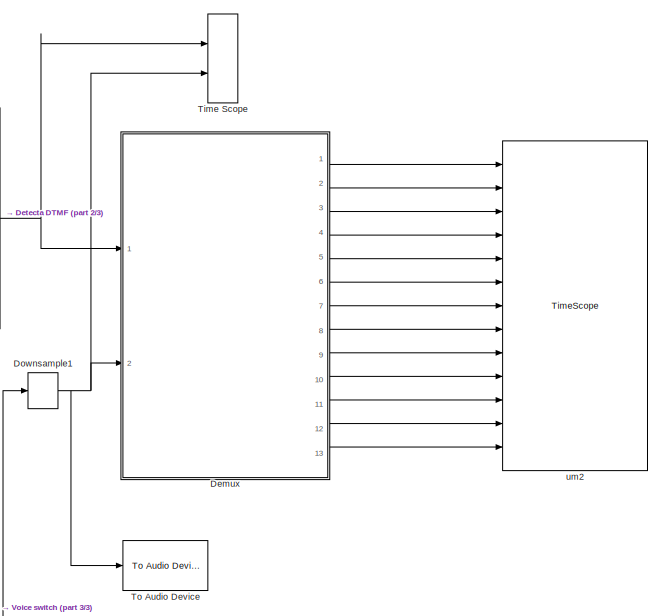
[diagram: root canvas - part 1/3, middle right region]
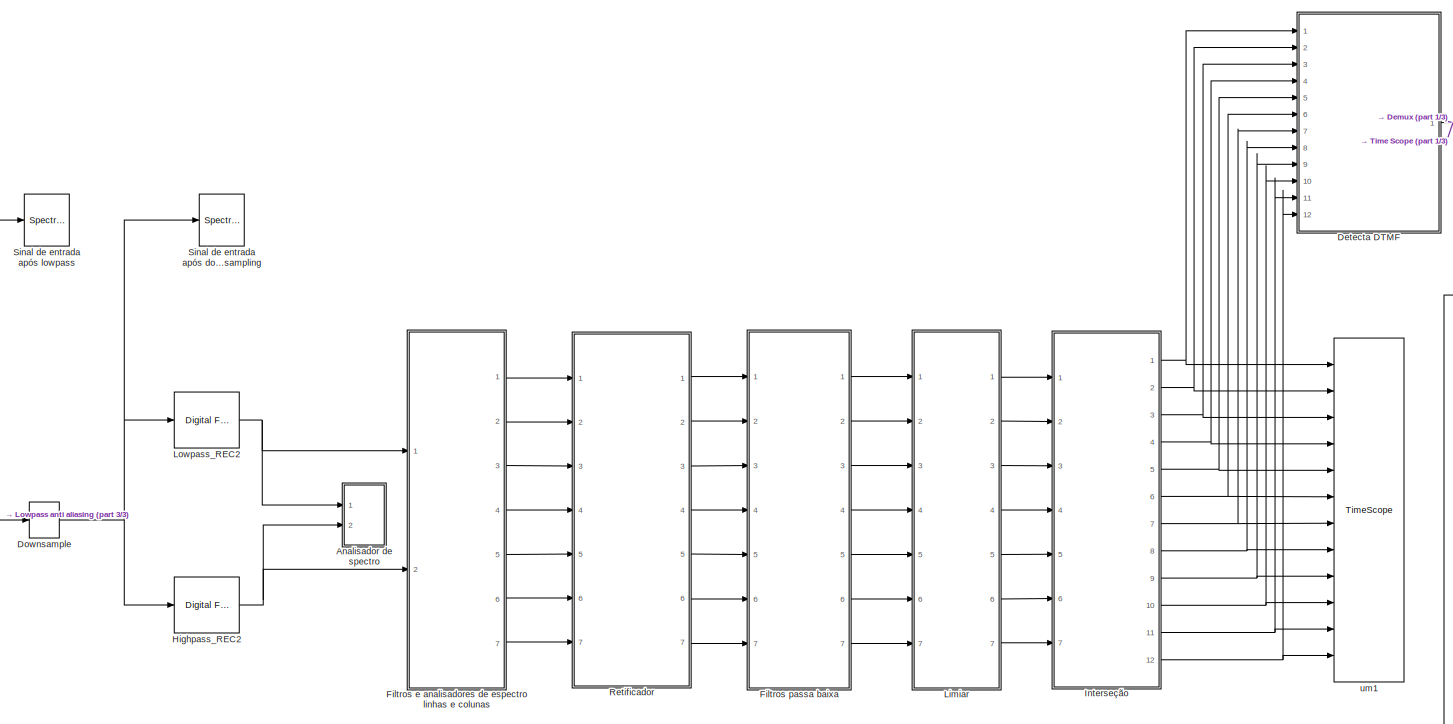
[diagram: root canvas - part 2/3, center side, full height]
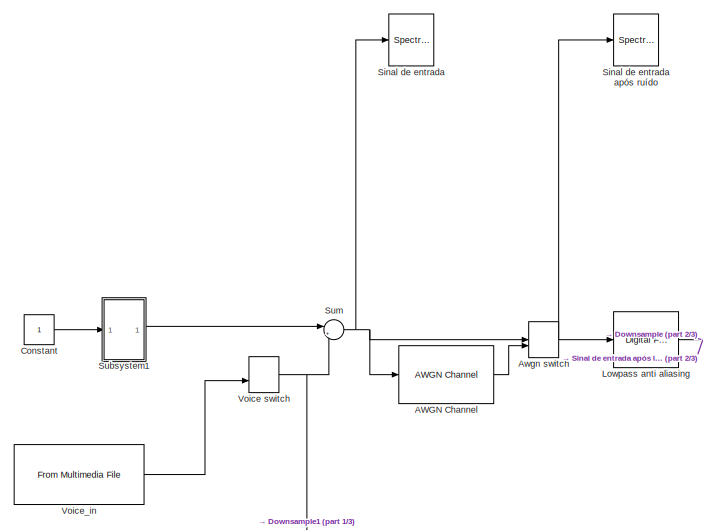
[diagram: root canvas - part 3/3, middle left region]
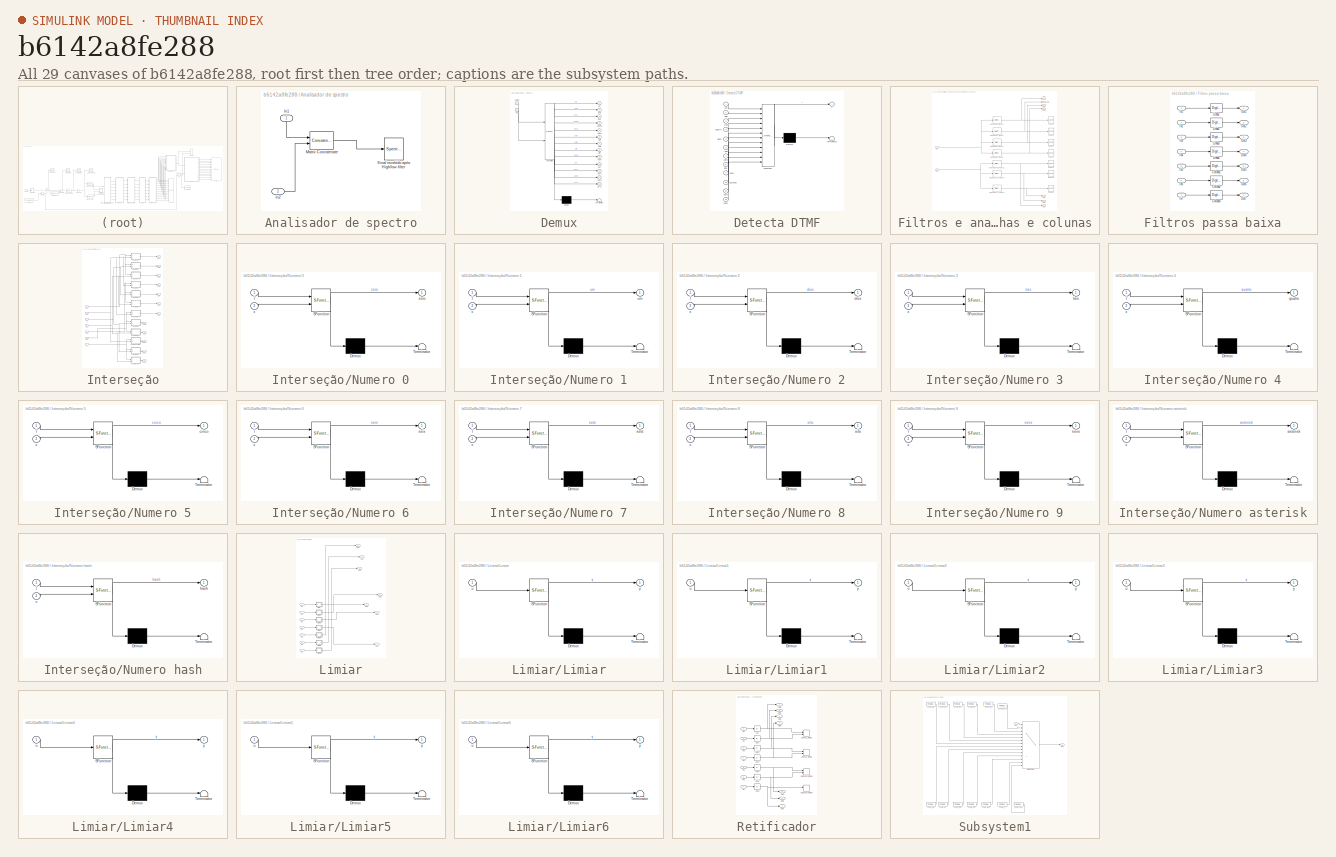
[diagram: thumbnail index - all 29 canvases of the model, root first then tree order]
MODEL slx_b6142a8fe288
KIND model
CONFIG AbsTol = auto
CONFIG FixedStep = auto
CONFIG MaxStep = auto
CONFIG MinStep = auto
CONFIG RelTol = 1e-3
CONFIG SampleTimeConstraint = Unconstrained
CONFIG Solver = FixedStepDiscrete
CONFIG SolverMode = SingleTasking
CONFIG SolverName = FixedStepDiscrete
CONFIG StartTime = 0.0
CONFIG StopTime = inf
BLOCK [Reference] AWGN Channel  REF=commchan3/AWGN
Channel
  EbNodB = 30
  EsNodB = 10
  InputProcessing = Columns as channels (frame based)
  Ports = [1, 1]
  Ps = 1
  SNRdB = 5
  SourceBlock = commchan3/AWGN\nChannel
  SourceType = AWGN Channel
  Tsym = 1
  UserDataPersistent = on
  bitsPerSym = 1
  noiseMode = Signal to noise ratio  (SNR)
  seed = 67
  variance = 1
BLOCK [SubSystem] Analisador de spectro
  Ports = [2]
  RequestExecContextInheritance = off
BLOCK [Inport] Analisador de spectro/In1
  IconDisplay = Port number
BLOCK [Inport] Analisador de spectro/In2
  IconDisplay = Port number
  Port = 2
BLOCK [Concatenate] Analisador de spectro/Matrix Concatenate
  ConcatenateDimension = 2
  Mode = Multidimensional array
  Ports = [2, 1]
BLOCK [SpectrumAnalyzer] Analisador de spectro/Sinal recebido após High//low filter
  Commented = on
  Ports = [1]
  ScopeSpecificationString = spbscopes.SpectrumAnalyzerBlockCfg('CurrentConfiguration', extmgr.ConfigurationSet(extmgr.Configuration('Core','General UI',true),extmgr.Configuration('Core','Source UI',true),extmgr.Configuration('Sources','WiredSimulink',true),extmgr.Configuration('Visuals','Spectrum',true,'AxesProperties',struct('Color',[0 0 0],'XColor',[0.686274509803922 0.686274509803922 0.686274509803922],'YColor',[0.6862745...<+6610ch>
BLOCK [ManualSwitch] Awgn switch
  CurrentSetting = 0
BLOCK [Constant] Constant
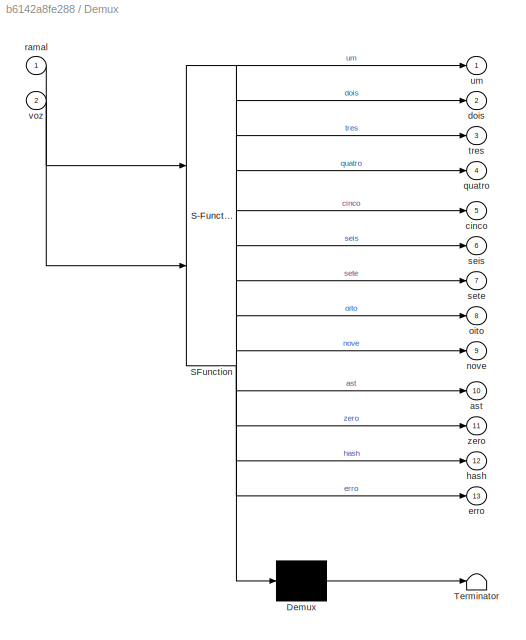
BLOCK [SubSystem] Demux
  ErrorFcn = Stateflow.Translate.translate
  PermitHierarchicalResolution = ExplicitOnly
  Ports = [2, 13]
  RequestExecContextInheritance = off
  SFBlockType = MATLAB Function
  TreatAsAtomicUnit = on
BLOCK [Demux] Demux/ Demux 
  Outputs = 1
  Ports = [1, 1]
BLOCK [S-Function] Demux/ SFunction 
  EnableBusSupport = on
  FunctionName = sf_sfun
  PortCounts = [2 14]
  Ports = [2, 14]
  Tag = Stateflow S-Function projeto_fixedstepdiscrete 21
BLOCK [Terminator] Demux/ Terminator 
BLOCK [Outport] Demux/ast
  IconDisplay = Port number
  Port = 10
BLOCK [Outport] Demux/cinco
  IconDisplay = Port number
  Port = 5
BLOCK [Outport] Demux/dois
  IconDisplay = Port number
  Port = 2
BLOCK [Outport] Demux/erro
  IconDisplay = Port number
  Port = 13
BLOCK [Outport] Demux/hash
  IconDisplay = Port number
  Port = 12
BLOCK [Outport] Demux/nove
  IconDisplay = Port number
  Port = 9
BLOCK [Outport] Demux/oito
  IconDisplay = Port number
  Port = 8
BLOCK [Outport] Demux/quatro
  IconDisplay = Port number
  Port = 4
BLOCK [Inport] Demux/ramal
  IconDisplay = Port number
BLOCK [Outport] Demux/seis
  IconDisplay = Port number
  Port = 6
BLOCK [Outport] Demux/sete
  IconDisplay = Port number
  Port = 7
BLOCK [Outport] Demux/tres
  IconDisplay = Port number
  Port = 3
BLOCK [Outport] Demux/um
  IconDisplay = Port number
BLOCK [Inport] Demux/voz
  IconDisplay = Port number
  Port = 2
BLOCK [Outport] Demux/zero
  IconDisplay = Port number
  Port = 11
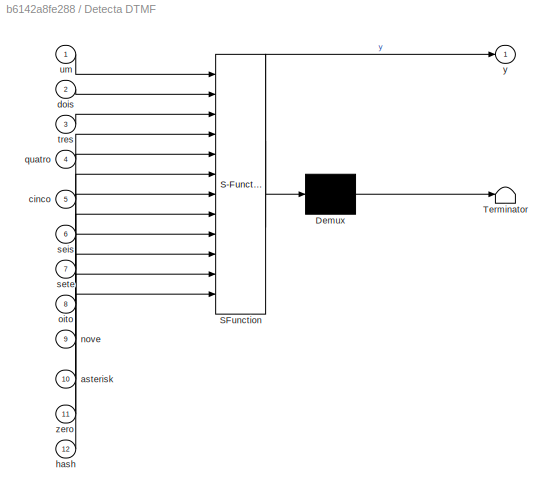
BLOCK [SubSystem] Detecta DTMF
  ErrorFcn = Stateflow.Translate.translate
  PermitHierarchicalResolution = ExplicitOnly
  Ports = [12, 1]
  RequestExecContextInheritance = off
  SFBlockType = MATLAB Function
  TreatAsAtomicUnit = on
BLOCK [Demux] Detecta DTMF/ Demux 
  Outputs = 1
  Ports = [1, 1]
BLOCK [S-Function] Detecta DTMF/ SFunction 
  EnableBusSupport = on
  FunctionName = sf_sfun
  PortCounts = [12 2]
  Ports = [12, 2]
  Tag = Stateflow S-Function projeto_fixedstepdiscrete 20
BLOCK [Terminator] Detecta DTMF/ Terminator 
BLOCK [Inport] Detecta DTMF/asterisk
  IconDisplay = Port number
  Port = 10
BLOCK [Inport] Detecta DTMF/cinco
  IconDisplay = Port number
  Port = 5
BLOCK [Inport] Detecta DTMF/dois
  IconDisplay = Port number
  Port = 2
BLOCK [Inport] Detecta DTMF/hash
  IconDisplay = Port number
  Port = 12
BLOCK [Inport] Detecta DTMF/nove
  IconDisplay = Port number
  Port = 9
BLOCK [Inport] Detecta DTMF/oito
  IconDisplay = Port number
  Port = 8
BLOCK [Inport] Detecta DTMF/quatro
  IconDisplay = Port number
  Port = 4
BLOCK [Inport] Detecta DTMF/seis
  IconDisplay = Port number
  Port = 6
BLOCK [Inport] Detecta DTMF/sete
  IconDisplay = Port number
  Port = 7
BLOCK [Inport] Detecta DTMF/tres
  IconDisplay = Port number
  Port = 3
BLOCK [Inport] Detecta DTMF/um
  IconDisplay = Port number
BLOCK [Outport] Detecta DTMF/y
  IconDisplay = Port number
BLOCK [Inport] Detecta DTMF/zero
  IconDisplay = Port number
  Port = 11
BLOCK [DownSample] Downsample
  InputProcessing = Elements as channels (sample based)
  N = 11
  RateOptions = Allow multirate processing
BLOCK [DownSample] Downsample1
  InputProcessing = Elements as channels (sample based)
  N = 11
  RateOptions = Allow multirate processing
BLOCK [SubSystem] Filtros e analisadores de espectro linhas e colunas
  Ports = [2, 7]
  RequestExecContextInheritance = off
BLOCK [Reference] Filtros e analisadores de espectro linhas e colunas/Bandpass_coluna1  REF=dsparch4/Digital
Filter Design
  Ports = [1, 1]
  SourceBlock = dsparch4/Digital\nFilter Design
  SourceType = Digital Filter Design
  UserDataPersistent = on
  mwdsp_browser_bugfix_var = off
BLOCK [Reference] Filtros e analisadores de espectro linhas e colunas/Bandpass_coluna2  REF=dsparch4/Digital
Filter Design
  Ports = [1, 1]
  SourceBlock = dsparch4/Digital\nFilter Design
  SourceType = Digital Filter Design
  UserDataPersistent = on
  mwdsp_browser_bugfix_var = off
BLOCK [Reference] Filtros e analisadores de espectro linhas e colunas/Bandpass_coluna3  REF=dsparch4/Digital
Filter Design
  Ports = [1, 1]
  SourceBlock = dsparch4/Digital\nFilter Design
  SourceType = Digital Filter Design
  UserDataPersistent = on
  mwdsp_browser_bugfix_var = off
BLOCK [Reference] Filtros e analisadores de espectro linhas e colunas/Bandpass_linha1  REF=dsparch4/Digital
Filter Design
  Ports = [1, 1]
  SourceBlock = dsparch4/Digital\nFilter Design
  SourceType = Digital Filter Design
  UserDataPersistent = on
  mwdsp_browser_bugfix_var = off
BLOCK [Reference] Filtros e analisadores de espectro linhas e colunas/Bandpass_linha2  REF=dsparch4/Digital
Filter Design
  Ports = [1, 1]
  SourceBlock = dsparch4/Digital\nFilter Design
  SourceType = Digital Filter Design
  UserDataPersistent = on
  mwdsp_browser_bugfix_var = off
BLOCK [Reference] Filtros e analisadores de espectro linhas e colunas/Bandpass_linha3  REF=dsparch4/Digital
Filter Design
  Ports = [1, 1]
  SourceBlock = dsparch4/Digital\nFilter Design
  SourceType = Digital Filter Design
  UserDataPersistent = on
  mwdsp_browser_bugfix_var = off
BLOCK [Reference] Filtros e analisadores de espectro linhas e colunas/Bandpass_linha4  REF=dsparch4/Digital
Filter Design
  Ports = [1, 1]
  SourceBlock = dsparch4/Digital\nFilter Design
  SourceType = Digital Filter Design
  UserDataPersistent = on
  mwdsp_browser_bugfix_var = off
BLOCK [SpectrumAnalyzer] Filtros e analisadores de espectro linhas e colunas/Coluna1 
  Commented = on
  Ports = [1]
  ScopeSpecificationString = spbscopes.SpectrumAnalyzerBlockCfg('CurrentConfiguration', extmgr.ConfigurationSet(extmgr.Configuration('Core','General UI',true),extmgr.Configuration('Core','Source UI',true),extmgr.Configuration('Sources','WiredSimulink',true),extmgr.Configuration('Visuals','Spectrum',true,'AxesProperties',struct('Color',[0 0 0],'XColor',[0.686274509803922 0.686274509803922 0.686274509803922],'YColor',[0.6862745...<+6284ch>
BLOCK [SpectrumAnalyzer] Filtros e analisadores de espectro linhas e colunas/Coluna2 
  Commented = on
  Ports = [1]
  ScopeSpecificationString = spbscopes.SpectrumAnalyzerBlockCfg('CurrentConfiguration', extmgr.ConfigurationSet(extmgr.Configuration('Core','General UI',true),extmgr.Configuration('Core','Source UI',true),extmgr.Configuration('Sources','WiredSimulink',true),extmgr.Configuration('Visuals','Spectrum',true,'AxesProperties',struct('Color',[0 0 0],'XColor',[0.686274509803922 0.686274509803922 0.686274509803922],'YColor',[0.6862745...<+6317ch>
BLOCK [SpectrumAnalyzer] Filtros e analisadores de espectro linhas e colunas/Coluna3
  Commented = on
  Ports = [1]
  ScopeSpecificationString = spbscopes.SpectrumAnalyzerBlockCfg('CurrentConfiguration', extmgr.ConfigurationSet(extmgr.Configuration('Core','General UI',true),extmgr.Configuration('Core','Source UI',true),extmgr.Configuration('Sources','WiredSimulink',true),extmgr.Configuration('Visuals','Spectrum',true,'AxesProperties',struct('Color',[0 0 0],'XColor',[0.686274509803922 0.686274509803922 0.686274509803922],'YColor',[0.6862745...<+6194ch>
BLOCK [Inport] Filtros e analisadores de espectro linhas e colunas/In1
  IconDisplay = Port number
BLOCK [Inport] Filtros e analisadores de espectro linhas e colunas/In2
  IconDisplay = Port number
  Port = 2
BLOCK [SpectrumAnalyzer] Filtros e analisadores de espectro linhas e colunas/Linha 1
  Commented = on
  Ports = [1]
  ScopeSpecificationString = spbscopes.SpectrumAnalyzerBlockCfg('CurrentConfiguration', extmgr.ConfigurationSet(extmgr.Configuration('Core','General UI',true),extmgr.Configuration('Core','Source UI',true),extmgr.Configuration('Sources','WiredSimulink',true),extmgr.Configuration('Visuals','Spectrum',true,'AxesProperties',struct('Color',[0 0 0],'XColor',[0.686274509803922 0.686274509803922 0.686274509803922],'YColor',[0.6862745...<+6522ch>
BLOCK [SpectrumAnalyzer] Filtros e analisadores de espectro linhas e colunas/Linha 2
  Commented = on
  Ports = [1]
  ScopeSpecificationString = spbscopes.SpectrumAnalyzerBlockCfg('CurrentConfiguration', extmgr.ConfigurationSet(extmgr.Configuration('Core','General UI',true),extmgr.Configuration('Core','Source UI',true),extmgr.Configuration('Sources','WiredSimulink',true),extmgr.Configuration('Visuals','Spectrum',true,'AxesProperties',struct('Color',[0 0 0],'XColor',[0.686274509803922 0.686274509803922 0.686274509803922],'YColor',[0.6862745...<+6453ch>
BLOCK [SpectrumAnalyzer] Filtros e analisadores de espectro linhas e colunas/Linha 3
  Commented = on
  Ports = [1]
  ScopeSpecificationString = spbscopes.SpectrumAnalyzerBlockCfg('CurrentConfiguration', extmgr.ConfigurationSet(extmgr.Configuration('Core','General UI',true),extmgr.Configuration('Core','Source UI',true),extmgr.Configuration('Sources','WiredSimulink',true),extmgr.Configuration('Visuals','Spectrum',true,'AxesProperties',struct('Color',[0 0 0],'XColor',[0.686274509803922 0.686274509803922 0.686274509803922],'YColor',[0.6862745...<+6249ch>
BLOCK [SpectrumAnalyzer] Filtros e analisadores de espectro linhas e colunas/Linha 4
  Commented = on
  Ports = [1]
  ScopeSpecificationString = spbscopes.SpectrumAnalyzerBlockCfg('CurrentConfiguration', extmgr.ConfigurationSet(extmgr.Configuration('Core','General UI',true),extmgr.Configuration('Core','Source UI',true),extmgr.Configuration('Sources','WiredSimulink',true),extmgr.Configuration('Visuals','Spectrum',true,'AxesProperties',struct('Color',[0 0 0],'XColor',[0.686274509803922 0.686274509803922 0.686274509803922],'YColor',[0.6862745...<+6553ch>
BLOCK [Outport] Filtros e analisadores de espectro linhas e colunas/Out1
  IconDisplay = Port number
BLOCK [Outport] Filtros e analisadores de espectro linhas e colunas/Out2
  IconDisplay = Port number
  Port = 2
BLOCK [Outport] Filtros e analisadores de espectro linhas e colunas/Out3
  IconDisplay = Port number
  Port = 3
BLOCK [Outport] Filtros e analisadores de espectro linhas e colunas/Out4
  IconDisplay = Port number
  Port = 4
BLOCK [Outport] Filtros e analisadores de espectro linhas e colunas/Out5
  IconDisplay = Port number
  Port = 5
BLOCK [Outport] Filtros e analisadores de espectro linhas e colunas/Out6
  IconDisplay = Port number
  Port = 6
BLOCK [Outport] Filtros e analisadores de espectro linhas e colunas/Out7
  IconDisplay = Port number
  Port = 7
BLOCK [SubSystem] Filtros passa baixa
  Ports = [7, 7]
  RequestExecContextInheritance = off
BLOCK [Reference] Filtros passa baixa/Coluna1  REF=dsparch4/Digital
Filter Design
  Ports = [1, 1]
  SourceBlock = dsparch4/Digital\nFilter Design
  SourceType = Digital Filter Design
  UserDataPersistent = on
  mwdsp_browser_bugfix_var = off
BLOCK [Reference] Filtros passa baixa/Coluna2  REF=dsparch4/Digital
Filter Design
  Ports = [1, 1]
  SourceBlock = dsparch4/Digital\nFilter Design
  SourceType = Digital Filter Design
  UserDataPersistent = on
  mwdsp_browser_bugfix_var = off
BLOCK [Reference] Filtros passa baixa/Coluna3  REF=dsparch4/Digital
Filter Design
  Ports = [1, 1]
  SourceBlock = dsparch4/Digital\nFilter Design
  SourceType = Digital Filter Design
  UserDataPersistent = on
  mwdsp_browser_bugfix_var = off
BLOCK [Inport] Filtros passa baixa/In1
  IconDisplay = Port number
BLOCK [Inport] Filtros passa baixa/In2
  IconDisplay = Port number
  Port = 2
BLOCK [Inport] Filtros passa baixa/In3
  IconDisplay = Port number
  Port = 3
BLOCK [Inport] Filtros passa baixa/In4
  IconDisplay = Port number
  Port = 4
BLOCK [Inport] Filtros passa baixa/In5
  IconDisplay = Port number
  Port = 5
BLOCK [Inport] Filtros passa baixa/In6
  IconDisplay = Port number
  Port = 6
BLOCK [Inport] Filtros passa baixa/In7
  IconDisplay = Port number
  Port = 7
BLOCK [Reference] Filtros passa baixa/Linha1  REF=dsparch4/Digital
Filter Design
  Ports = [1, 1]
  SourceBlock = dsparch4/Digital\nFilter Design
  SourceType = Digital Filter Design
  UserDataPersistent = on
  mwdsp_browser_bugfix_var = off
BLOCK [Reference] Filtros passa baixa/Linha2  REF=dsparch4/Digital
Filter Design
  Ports = [1, 1]
  SourceBlock = dsparch4/Digital\nFilter Design
  SourceType = Digital Filter Design
  UserDataPersistent = on
  mwdsp_browser_bugfix_var = off
BLOCK [Reference] Filtros passa baixa/Linha3  REF=dsparch4/Digital
Filter Design
  Ports = [1, 1]
  SourceBlock = dsparch4/Digital\nFilter Design
  SourceType = Digital Filter Design
  UserDataPersistent = on
  mwdsp_browser_bugfix_var = off
BLOCK [Reference] Filtros passa baixa/Linha4  REF=dsparch4/Digital
Filter Design
  Ports = [1, 1]
  SourceBlock = dsparch4/Digital\nFilter Design
  SourceType = Digital Filter Design
  UserDataPersistent = on
  mwdsp_browser_bugfix_var = off
BLOCK [Outport] Filtros passa baixa/Out1
  IconDisplay = Port number
BLOCK [Outport] Filtros passa baixa/Out2
  IconDisplay = Port number
  Port = 2
BLOCK [Outport] Filtros passa baixa/Out3
  IconDisplay = Port number
  Port = 3
BLOCK [Outport] Filtros passa baixa/Out4
  IconDisplay = Port number
  Port = 4
BLOCK [Outport] Filtros passa baixa/Out5
  IconDisplay = Port number
  Port = 5
BLOCK [Outport] Filtros passa baixa/Out6
  IconDisplay = Port number
  Port = 6
BLOCK [Outport] Filtros passa baixa/Out7
  IconDisplay = Port number
  Port = 7
BLOCK [Reference] Highpass_REC2   REF=dsparch4/Digital
Filter Design
  Ports = [1, 1]
  SourceBlock = dsparch4/Digital\nFilter Design
  SourceType = Digital Filter Design
  UserDataPersistent = on
  mwdsp_browser_bugfix_var = off
BLOCK [SubSystem] Interseção
  Ports = [7, 12]
  RequestExecContextInheritance = off
BLOCK [Inport] Interseção/In1
  IconDisplay = Port number
BLOCK [Inport] Interseção/In2
  IconDisplay = Port number
  Port = 2
BLOCK [Inport] Interseção/In3
  IconDisplay = Port number
  Port = 3
BLOCK [Inport] Interseção/In4
  IconDisplay = Port number
  Port = 4
BLOCK [Inport] Interseção/In5
  IconDisplay = Port number
  Port = 5
BLOCK [Inport] Interseção/In6
  IconDisplay = Port number
  Port = 6
BLOCK [Inport] Interseção/In7
  IconDisplay = Port number
  Port = 7
BLOCK [SubSystem] Interseção/Numero 0
  ErrorFcn = Stateflow.Translate.translate
  PermitHierarchicalResolution = ExplicitOnly
  Ports = [2, 1]
  RequestExecContextInheritance = off
  SFBlockType = MATLAB Function
  TreatAsAtomicUnit = on
BLOCK [Demux] Interseção/Numero 0/ Demux 
  Outputs = 1
  Ports = [1, 1]
BLOCK [S-Function] Interseção/Numero 0/ SFunction 
  EnableBusSupport = on
  FunctionName = sf_sfun
  PortCounts = [2 2]
  Ports = [2, 2]
  Tag = Stateflow S-Function projeto_fixedstepdiscrete 18
BLOCK [Terminator] Interseção/Numero 0/ Terminator 
BLOCK [Inport] Interseção/Numero 0/c
  IconDisplay = Port number
  Port = 2
BLOCK [Inport] Interseção/Numero 0/l
  IconDisplay = Port number
BLOCK [Outport] Interseção/Numero 0/zero
  IconDisplay = Port number
BLOCK [SubSystem] Interseção/Numero 1
  ErrorFcn = Stateflow.Translate.translate
  PermitHierarchicalResolution = ExplicitOnly
  Ports = [2, 1]
  RequestExecContextInheritance = off
  SFBlockType = MATLAB Function
  TreatAsAtomicUnit = on
BLOCK [Demux] Interseção/Numero 1/ Demux 
  Outputs = 1
  Ports = [1, 1]
BLOCK [S-Function] Interseção/Numero 1/ SFunction 
  EnableBusSupport = on
  FunctionName = sf_sfun
  PortCounts = [2 2]
  Ports = [2, 2]
  Tag = Stateflow S-Function projeto_fixedstepdiscrete 3
BLOCK [Terminator] Interseção/Numero 1/ Terminator 
BLOCK [Inport] Interseção/Numero 1/c
  IconDisplay = Port number
  Port = 2
BLOCK [Inport] Interseção/Numero 1/l
  IconDisplay = Port number
BLOCK [Outport] Interseção/Numero 1/um
  IconDisplay = Port number
BLOCK [SubSystem] Interseção/Numero 2
  ErrorFcn = Stateflow.Translate.translate
  PermitHierarchicalResolution = ExplicitOnly
  Ports = [2, 1]
  RequestExecContextInheritance = off
  SFBlockType = MATLAB Function
  TreatAsAtomicUnit = on
BLOCK [Demux] Interseção/Numero 2/ Demux 
  Outputs = 1
  Ports = [1, 1]
BLOCK [S-Function] Interseção/Numero 2/ SFunction 
  EnableBusSupport = on
  FunctionName = sf_sfun
  PortCounts = [2 2]
  Ports = [2, 2]
  Tag = Stateflow S-Function projeto_fixedstepdiscrete 1
BLOCK [Terminator] Interseção/Numero 2/ Terminator 
BLOCK [Inport] Interseção/Numero 2/c
  IconDisplay = Port number
  Port = 2
BLOCK [Outport] Interseção/Numero 2/dois
  IconDisplay = Port number
BLOCK [Inport] Interseção/Numero 2/l
  IconDisplay = Port number
BLOCK [SubSystem] Interseção/Numero 3
  ErrorFcn = Stateflow.Translate.translate
  PermitHierarchicalResolution = ExplicitOnly
  Ports = [2, 1]
  RequestExecContextInheritance = off
  SFBlockType = MATLAB Function
  TreatAsAtomicUnit = on
BLOCK [Demux] Interseção/Numero 3/ Demux 
  Outputs = 1
  Ports = [1, 1]
BLOCK [S-Function] Interseção/Numero 3/ SFunction 
  EnableBusSupport = on
  FunctionName = sf_sfun
  PortCounts = [2 2]
  Ports = [2, 2]
  Tag = Stateflow S-Function projeto_fixedstepdiscrete 10
BLOCK [Terminator] Interseção/Numero 3/ Terminator 
BLOCK [Inport] Interseção/Numero 3/c
  IconDisplay = Port number
  Port = 2
BLOCK [Inport] Interseção/Numero 3/l
  IconDisplay = Port number
BLOCK [Outport] Interseção/Numero 3/tres
  IconDisplay = Port number
BLOCK [SubSystem] Interseção/Numero 4
  ErrorFcn = Stateflow.Translate.translate
  PermitHierarchicalResolution = ExplicitOnly
  Ports = [2, 1]
  RequestExecContextInheritance = off
  SFBlockType = MATLAB Function
  TreatAsAtomicUnit = on
BLOCK [Demux] Interseção/Numero 4/ Demux 
  Outputs = 1
  Ports = [1, 1]
BLOCK [S-Function] Interseção/Numero 4/ SFunction 
  EnableBusSupport = on
  FunctionName = sf_sfun
  PortCounts = [2 2]
  Ports = [2, 2]
  Tag = Stateflow S-Function projeto_fixedstepdiscrete 11
BLOCK [Terminator] Interseção/Numero 4/ Terminator 
BLOCK [Inport] Interseção/Numero 4/c
  IconDisplay = Port number
  Port = 2
BLOCK [Inport] Interseção/Numero 4/l
  IconDisplay = Port number
BLOCK [Outport] Interseção/Numero 4/quatro
  IconDisplay = Port number
BLOCK [SubSystem] Interseção/Numero 5
  ErrorFcn = Stateflow.Translate.translate
  PermitHierarchicalResolution = ExplicitOnly
  Ports = [2, 1]
  RequestExecContextInheritance = off
  SFBlockType = MATLAB Function
  TreatAsAtomicUnit = on
BLOCK [Demux] Interseção/Numero 5/ Demux 
  Outputs = 1
  Ports = [1, 1]
BLOCK [S-Function] Interseção/Numero 5/ SFunction 
  EnableBusSupport = on
  FunctionName = sf_sfun
  PortCounts = [2 2]
  Ports = [2, 2]
  Tag = Stateflow S-Function projeto_fixedstepdiscrete 12
BLOCK [Terminator] Interseção/Numero 5/ Terminator 
BLOCK [Inport] Interseção/Numero 5/c
  IconDisplay = Port number
  Port = 2
BLOCK [Outport] Interseção/Numero 5/cinco
  IconDisplay = Port number
BLOCK [Inport] Interseção/Numero 5/l
  IconDisplay = Port number
BLOCK [SubSystem] Interseção/Numero 6
  ErrorFcn = Stateflow.Translate.translate
  PermitHierarchicalResolution = ExplicitOnly
  Ports = [2, 1]
  RequestExecContextInheritance = off
  SFBlockType = MATLAB Function
  TreatAsAtomicUnit = on
BLOCK [Demux] Interseção/Numero 6/ Demux 
  Outputs = 1
  Ports = [1, 1]
BLOCK [S-Function] Interseção/Numero 6/ SFunction 
  EnableBusSupport = on
  FunctionName = sf_sfun
  PortCounts = [2 2]
  Ports = [2, 2]
  Tag = Stateflow S-Function projeto_fixedstepdiscrete 13
BLOCK [Terminator] Interseção/Numero 6/ Terminator 
BLOCK [Inport] Interseção/Numero 6/c
  IconDisplay = Port number
  Port = 2
BLOCK [Inport] Interseção/Numero 6/l
  IconDisplay = Port number
BLOCK [Outport] Interseção/Numero 6/seis
  IconDisplay = Port number
BLOCK [SubSystem] Interseção/Numero 7
  ErrorFcn = Stateflow.Translate.translate
  PermitHierarchicalResolution = ExplicitOnly
  Ports = [2, 1]
  RequestExecContextInheritance = off
  SFBlockType = MATLAB Function
  TreatAsAtomicUnit = on
BLOCK [Demux] Interseção/Numero 7/ Demux 
  Outputs = 1
  Ports = [1, 1]
BLOCK [S-Function] Interseção/Numero 7/ SFunction 
  EnableBusSupport = on
  FunctionName = sf_sfun
  PortCounts = [2 2]
  Ports = [2, 2]
  Tag = Stateflow S-Function projeto_fixedstepdiscrete 14
BLOCK [Terminator] Interseção/Numero 7/ Terminator 
BLOCK [Inport] Interseção/Numero 7/c
  IconDisplay = Port number
  Port = 2
BLOCK [Inport] Interseção/Numero 7/l
  IconDisplay = Port number
BLOCK [Outport] Interseção/Numero 7/sete
  IconDisplay = Port number
BLOCK [SubSystem] Interseção/Numero 8
  ErrorFcn = Stateflow.Translate.translate
  PermitHierarchicalResolution = ExplicitOnly
  Ports = [2, 1]
  RequestExecContextInheritance = off
  SFBlockType = MATLAB Function
  TreatAsAtomicUnit = on
BLOCK [Demux] Interseção/Numero 8/ Demux 
  Outputs = 1
  Ports = [1, 1]
BLOCK [S-Function] Interseção/Numero 8/ SFunction 
  EnableBusSupport = on
  FunctionName = sf_sfun
  PortCounts = [2 2]
  Ports = [2, 2]
  Tag = Stateflow S-Function projeto_fixedstepdiscrete 15
BLOCK [Terminator] Interseção/Numero 8/ Terminator 
BLOCK [Inport] Interseção/Numero 8/c
  IconDisplay = Port number
  Port = 2
BLOCK [Inport] Interseção/Numero 8/l
  IconDisplay = Port number
BLOCK [Outport] Interseção/Numero 8/oito
  IconDisplay = Port number
BLOCK [SubSystem] Interseção/Numero 9
  ErrorFcn = Stateflow.Translate.translate
  PermitHierarchicalResolution = ExplicitOnly
  Ports = [2, 1]
  RequestExecContextInheritance = off
  SFBlockType = MATLAB Function
  TreatAsAtomicUnit = on
BLOCK [Demux] Interseção/Numero 9/ Demux 
  Outputs = 1
  Ports = [1, 1]
BLOCK [S-Function] Interseção/Numero 9/ SFunction 
  EnableBusSupport = on
  FunctionName = sf_sfun
  PortCounts = [2 2]
  Ports = [2, 2]
  Tag = Stateflow S-Function projeto_fixedstepdiscrete 16
BLOCK [Terminator] Interseção/Numero 9/ Terminator 
BLOCK [Inport] Interseção/Numero 9/c
  IconDisplay = Port number
  Port = 2
BLOCK [Inport] Interseção/Numero 9/l
  IconDisplay = Port number
BLOCK [Outport] Interseção/Numero 9/nove
  IconDisplay = Port number
BLOCK [SubSystem] Interseção/Numero asterisk
  ErrorFcn = Stateflow.Translate.translate
  PermitHierarchicalResolution = ExplicitOnly
  Ports = [2, 1]
  RequestExecContextInheritance = off
  SFBlockType = MATLAB Function
  TreatAsAtomicUnit = on
BLOCK [Demux] Interseção/Numero asterisk/ Demux 
  Outputs = 1
  Ports = [1, 1]
BLOCK [S-Function] Interseção/Numero asterisk/ SFunction 
  EnableBusSupport = on
  FunctionName = sf_sfun
  PortCounts = [2 2]
  Ports = [2, 2]
  Tag = Stateflow S-Function projeto_fixedstepdiscrete 17
BLOCK [Terminator] Interseção/Numero asterisk/ Terminator 
BLOCK [Outport] Interseção/Numero asterisk/asterisk
  IconDisplay = Port number
BLOCK [Inport] Interseção/Numero asterisk/c
  IconDisplay = Port number
  Port = 2
BLOCK [Inport] Interseção/Numero asterisk/l
  IconDisplay = Port number
BLOCK [SubSystem] Interseção/Numero hash
  ErrorFcn = Stateflow.Translate.translate
  PermitHierarchicalResolution = ExplicitOnly
  Ports = [2, 1]
  RequestExecContextInheritance = off
  SFBlockType = MATLAB Function
  TreatAsAtomicUnit = on
BLOCK [Demux] Interseção/Numero hash/ Demux 
  Outputs = 1
  Ports = [1, 1]
BLOCK [S-Function] Interseção/Numero hash/ SFunction 
  EnableBusSupport = on
  FunctionName = sf_sfun
  PortCounts = [2 2]
  Ports = [2, 2]
  Tag = Stateflow S-Function projeto_fixedstepdiscrete 19
BLOCK [Terminator] Interseção/Numero hash/ Terminator 
BLOCK [Inport] Interseção/Numero hash/c
  IconDisplay = Port number
  Port = 2
BLOCK [Outport] Interseção/Numero hash/hash
  IconDisplay = Port number
BLOCK [Inport] Interseção/Numero hash/l
  IconDisplay = Port number
BLOCK [Outport] Interseção/Out1
  IconDisplay = Port number
BLOCK [Outport] Interseção/Out10
  IconDisplay = Port number
  Port = 10
BLOCK [Outport] Interseção/Out11
  IconDisplay = Port number
  Port = 11
BLOCK [Outport] Interseção/Out12
  IconDisplay = Port number
  Port = 12
BLOCK [Outport] Interseção/Out2
  IconDisplay = Port number
  Port = 2
BLOCK [Outport] Interseção/Out3
  IconDisplay = Port number
  Port = 3
BLOCK [Outport] Interseção/Out4
  IconDisplay = Port number
  Port = 4
BLOCK [Outport] Interseção/Out5
  IconDisplay = Port number
  Port = 5
BLOCK [Outport] Interseção/Out6
  IconDisplay = Port number
  Port = 6
BLOCK [Outport] Interseção/Out7
  IconDisplay = Port number
  Port = 7
BLOCK [Outport] Interseção/Out8
  IconDisplay = Port number
  Port = 8
BLOCK [Outport] Interseção/Out9
  IconDisplay = Port number
  Port = 9
BLOCK [SubSystem] Limiar
  Ports = [7, 7]
  RequestExecContextInheritance = off
BLOCK [Inport] Limiar/In1
  IconDisplay = Port number
BLOCK [Inport] Limiar/In2
  IconDisplay = Port number
  Port = 2
BLOCK [Inport] Limiar/In3
  IconDisplay = Port number
  Port = 3
BLOCK [Inport] Limiar/In4
  IconDisplay = Port number
  Port = 4
BLOCK [Inport] Limiar/In5
  IconDisplay = Port number
  Port = 5
BLOCK [Inport] Limiar/In6
  IconDisplay = Port number
  Port = 6
BLOCK [Inport] Limiar/In7
  IconDisplay = Port number
  Port = 7
BLOCK [SubSystem] Limiar/Limiar
  ErrorFcn = Stateflow.Translate.translate
  PermitHierarchicalResolution = ExplicitOnly
  Ports = [1, 1]
  RequestExecContextInheritance = off
  SFBlockType = MATLAB Function
  TreatAsAtomicUnit = on
BLOCK [Demux] Limiar/Limiar/ Demux 
  Outputs = 1
  Ports = [1, 1]
BLOCK [S-Function] Limiar/Limiar/ SFunction 
  EnableBusSupport = on
  FunctionName = sf_sfun
  PortCounts = [1 2]
  Ports = [1, 2]
  Tag = Stateflow S-Function projeto_fixedstepdiscrete 2
BLOCK [Terminator] Limiar/Limiar/ Terminator 
BLOCK [Inport] Limiar/Limiar/u
  IconDisplay = Port number
BLOCK [Outport] Limiar/Limiar/y
  IconDisplay = Port number
BLOCK [SubSystem] Limiar/Limiar1
  ErrorFcn = Stateflow.Translate.translate
  PermitHierarchicalResolution = ExplicitOnly
  Ports = [1, 1]
  RequestExecContextInheritance = off
  SFBlockType = MATLAB Function
  TreatAsAtomicUnit = on
BLOCK [Demux] Limiar/Limiar1/ Demux 
  Outputs = 1
  Ports = [1, 1]
BLOCK [S-Function] Limiar/Limiar1/ SFunction 
  EnableBusSupport = on
  FunctionName = sf_sfun
  PortCounts = [1 2]
  Ports = [1, 2]
  Tag = Stateflow S-Function projeto_fixedstepdiscrete 4
BLOCK [Terminator] Limiar/Limiar1/ Terminator 
BLOCK [Inport] Limiar/Limiar1/u
  IconDisplay = Port number
BLOCK [Outport] Limiar/Limiar1/y
  IconDisplay = Port number
BLOCK [SubSystem] Limiar/Limiar2
  ErrorFcn = Stateflow.Translate.translate
  PermitHierarchicalResolution = ExplicitOnly
  Ports = [1, 1]
  RequestExecContextInheritance = off
  SFBlockType = MATLAB Function
  TreatAsAtomicUnit = on
BLOCK [Demux] Limiar/Limiar2/ Demux 
  Outputs = 1
  Ports = [1, 1]
BLOCK [S-Function] Limiar/Limiar2/ SFunction 
  EnableBusSupport = on
  FunctionName = sf_sfun
  PortCounts = [1 2]
  Ports = [1, 2]
  Tag = Stateflow S-Function projeto_fixedstepdiscrete 5
BLOCK [Terminator] Limiar/Limiar2/ Terminator 
BLOCK [Inport] Limiar/Limiar2/u
  IconDisplay = Port number
BLOCK [Outport] Limiar/Limiar2/y
  IconDisplay = Port number
BLOCK [SubSystem] Limiar/Limiar3
  ErrorFcn = Stateflow.Translate.translate
  PermitHierarchicalResolution = ExplicitOnly
  Ports = [1, 1]
  RequestExecContextInheritance = off
  SFBlockType = MATLAB Function
  TreatAsAtomicUnit = on
BLOCK [Demux] Limiar/Limiar3/ Demux 
  Outputs = 1
  Ports = [1, 1]
BLOCK [S-Function] Limiar/Limiar3/ SFunction 
  EnableBusSupport = on
  FunctionName = sf_sfun
  PortCounts = [1 2]
  Ports = [1, 2]
  Tag = Stateflow S-Function projeto_fixedstepdiscrete 6
BLOCK [Terminator] Limiar/Limiar3/ Terminator 
BLOCK [Inport] Limiar/Limiar3/u
  IconDisplay = Port number
BLOCK [Outport] Limiar/Limiar3/y
  IconDisplay = Port number
BLOCK [SubSystem] Limiar/Limiar4
  ErrorFcn = Stateflow.Translate.translate
  PermitHierarchicalResolution = ExplicitOnly
  Ports = [1, 1]
  RequestExecContextInheritance = off
  SFBlockType = MATLAB Function
  TreatAsAtomicUnit = on
BLOCK [Demux] Limiar/Limiar4/ Demux 
  Outputs = 1
  Ports = [1, 1]
BLOCK [S-Function] Limiar/Limiar4/ SFunction 
  EnableBusSupport = on
  FunctionName = sf_sfun
  PortCounts = [1 2]
  Ports = [1, 2]
  Tag = Stateflow S-Function projeto_fixedstepdiscrete 7
BLOCK [Terminator] Limiar/Limiar4/ Terminator 
BLOCK [Inport] Limiar/Limiar4/u
  IconDisplay = Port number
BLOCK [Outport] Limiar/Limiar4/y
  IconDisplay = Port number
BLOCK [SubSystem] Limiar/Limiar5
  ErrorFcn = Stateflow.Translate.translate
  PermitHierarchicalResolution = ExplicitOnly
  Ports = [1, 1]
  RequestExecContextInheritance = off
  SFBlockType = MATLAB Function
  TreatAsAtomicUnit = on
BLOCK [Demux] Limiar/Limiar5/ Demux 
  Outputs = 1
  Ports = [1, 1]
BLOCK [S-Function] Limiar/Limiar5/ SFunction 
  EnableBusSupport = on
  FunctionName = sf_sfun
  PortCounts = [1 2]
  Ports = [1, 2]
  Tag = Stateflow S-Function projeto_fixedstepdiscrete 8
BLOCK [Terminator] Limiar/Limiar5/ Terminator 
BLOCK [Inport] Limiar/Limiar5/u
  IconDisplay = Port number
BLOCK [Outport] Limiar/Limiar5/y
  IconDisplay = Port number
BLOCK [SubSystem] Limiar/Limiar6
  ErrorFcn = Stateflow.Translate.translate
  PermitHierarchicalResolution = ExplicitOnly
  Ports = [1, 1]
  RequestExecContextInheritance = off
  SFBlockType = MATLAB Function
  TreatAsAtomicUnit = on
BLOCK [Demux] Limiar/Limiar6/ Demux 
  Outputs = 1
  Ports = [1, 1]
BLOCK [S-Function] Limiar/Limiar6/ SFunction 
  EnableBusSupport = on
  FunctionName = sf_sfun
  PortCounts = [1 2]
  Ports = [1, 2]
  Tag = Stateflow S-Function projeto_fixedstepdiscrete 9
BLOCK [Terminator] Limiar/Limiar6/ Terminator 
BLOCK [Inport] Limiar/Limiar6/u
  IconDisplay = Port number
BLOCK [Outport] Limiar/Limiar6/y
  IconDisplay = Port number
BLOCK [Outport] Limiar/Out1
  IconDisplay = Port number
BLOCK [Outport] Limiar/Out2
  IconDisplay = Port number
  Port = 2
BLOCK [Outport] Limiar/Out3
  IconDisplay = Port number
  Port = 3
BLOCK [Outport] Limiar/Out4
  IconDisplay = Port number
  Port = 4
BLOCK [Outport] Limiar/Out5
  IconDisplay = Port number
  Port = 5
BLOCK [Outport] Limiar/Out6
  IconDisplay = Port number
  Port = 6
BLOCK [Outport] Limiar/Out7
  IconDisplay = Port number
  Port = 7
BLOCK [Reference] Lowpass anti aliasing  REF=dsparch4/Digital
Filter Design
  Ports = [1, 1]
  SourceBlock = dsparch4/Digital\nFilter Design
  SourceType = Digital Filter Design
  UserDataPersistent = on
  mwdsp_browser_bugfix_var = off
BLOCK [Reference] Lowpass_REC2  REF=dsparch4/Digital
Filter Design
  Ports = [1, 1]
  SourceBlock = dsparch4/Digital\nFilter Design
  SourceType = Digital Filter Design
  UserDataPersistent = on
  mwdsp_browser_bugfix_var = off
BLOCK [SubSystem] Retificador
  Ports = [7, 7]
  RequestExecContextInheritance = off
BLOCK [Abs] Retificador/Abs
  SaturateOnIntegerOverflow = off
BLOCK [Abs] Retificador/Abs1
  SaturateOnIntegerOverflow = off
BLOCK [Abs] Retificador/Abs2
  SaturateOnIntegerOverflow = off
BLOCK [Abs] Retificador/Abs3
  SaturateOnIntegerOverflow = off
BLOCK [Abs] Retificador/Abs4
  SaturateOnIntegerOverflow = off
BLOCK [Abs] Retificador/Abs5
  SaturateOnIntegerOverflow = off
BLOCK [Abs] Retificador/Abs6
  SaturateOnIntegerOverflow = off
BLOCK [TimeScope] Retificador/Coluna12_tempo
  Commented = on
  DefaultConfigurationName = spbscopes.TimeScopeBlockCfg
  NumInputPorts = 2
  Ports = [2]
  ScopeSpecificationString = spbscopes.TimeScopeBlockCfg('CurrentConfiguration', extmgr.ConfigurationSet(extmgr.Configuration('Core','General UI',true),extmgr.Configuration('Core','Source UI',true),extmgr.Configuration('Sources','WiredSimulink',true,'DataLoggingVariableName','ScopeData2'),extmgr.Configuration('Visuals','Time Domain',true,'DisplayPropertyDefaults',struct('MinYLimReal','-0.0425952','MaxYLimReal','0.383357','YLa...<+1744ch>
  UserDataPersistent = on
BLOCK [TimeScope] Retificador/Coluna34_tempo
  Commented = on
  DefaultConfigurationName = spbscopes.TimeScopeBlockCfg
  NumInputPorts = 2
  Ports = [2]
  ScopeSpecificationString = spbscopes.TimeScopeBlockCfg('CurrentConfiguration', extmgr.ConfigurationSet(extmgr.Configuration('Core','General UI',true),extmgr.Configuration('Core','Source UI',true),extmgr.Configuration('Sources','WiredSimulink',true,'DataLoggingVariableName','ScopeData3'),extmgr.Configuration('Visuals','Time Domain',true,'DisplayPropertyDefaults',struct('MinYLimReal','0.254513','MaxYLimReal','0.266345','YLabe...<+1438ch>
  UserDataPersistent = on
BLOCK [Inport] Retificador/In1
  IconDisplay = Port number
BLOCK [Inport] Retificador/In2
  IconDisplay = Port number
  Port = 2
BLOCK [Inport] Retificador/In3
  IconDisplay = Port number
  Port = 3
BLOCK [Inport] Retificador/In4
  IconDisplay = Port number
  Port = 4
BLOCK [Inport] Retificador/In5
  IconDisplay = Port number
  Port = 5
BLOCK [Inport] Retificador/In6
  IconDisplay = Port number
  Port = 6
BLOCK [Inport] Retificador/In7
  IconDisplay = Port number
  Port = 7
BLOCK [TimeScope] Retificador/Linha12_tempo 
  Commented = on
  DefaultConfigurationName = spbscopes.TimeScopeBlockCfg
  NumInputPorts = 2
  Ports = [2]
  ScopeSpecificationString = spbscopes.TimeScopeBlockCfg('CurrentConfiguration', extmgr.ConfigurationSet(extmgr.Configuration('Core','General UI',true),extmgr.Configuration('Core','Source UI',true),extmgr.Configuration('Sources','WiredSimulink',true),extmgr.Configuration('Visuals','Time Domain',true,'DisplayPropertyDefaults',struct('MinYLimReal','-0.0525284','MaxYLimReal','0.472757','YLabelReal','Amplitude','MinYLimMag','0','...<+1397ch>
  UserDataPersistent = on
BLOCK [TimeScope] Retificador/Linha34_tempo
  Commented = on
  DefaultConfigurationName = spbscopes.TimeScopeBlockCfg
  NumInputPorts = 2
  Ports = [2]
  ScopeSpecificationString = spbscopes.TimeScopeBlockCfg('CurrentConfiguration', extmgr.ConfigurationSet(extmgr.Configuration('Core','General UI',true),extmgr.Configuration('Core','Source UI',true),extmgr.Configuration('Sources','WiredSimulink',true,'DataLoggingVariableName','ScopeData1'),extmgr.Configuration('Visuals','Time Domain',true,'DisplayPropertyDefaults',struct('MinYLimReal','0.254513','MaxYLimReal','0.266345','YLabe...<+1438ch>
  UserDataPersistent = on
BLOCK [Outport] Retificador/Out1
  IconDisplay = Port number
BLOCK [Outport] Retificador/Out2
  IconDisplay = Port number
  Port = 2
BLOCK [Outport] Retificador/Out3
  IconDisplay = Port number
  Port = 3
BLOCK [Outport] Retificador/Out4
  IconDisplay = Port number
  Port = 4
BLOCK [Outport] Retificador/Out5
  IconDisplay = Port number
  Port = 5
BLOCK [Outport] Retificador/Out6
  IconDisplay = Port number
  Port = 6
BLOCK [Outport] Retificador/Out7
  IconDisplay = Port number
  Port = 7
BLOCK [SpectrumAnalyzer] Sinal de entrada 
  Commented = on
  Ports = [1]
  ScopeSpecificationString = spbscopes.SpectrumAnalyzerBlockCfg('CurrentConfiguration', extmgr.ConfigurationSet(extmgr.Configuration('Core','General UI',true),extmgr.Configuration('Core','Source UI',true),extmgr.Configuration('Sources','WiredSimulink',true),extmgr.Configuration('Visuals','Spectrum',true,'AxesProperties',struct('Color',[0 0 0],'XColor',[0.686274509803922 0.686274509803922 0.686274509803922],'YColor',[0.6862745...<+6112ch>
BLOCK [SpectrumAnalyzer] Sinal de entrada após downsampling 
  Commented = on
  Ports = [1]
  ScopeSpecificationString = spbscopes.SpectrumAnalyzerBlockCfg('CurrentConfiguration', extmgr.ConfigurationSet(extmgr.Configuration('Core','General UI',true),extmgr.Configuration('Core','Source UI',true),extmgr.Configuration('Sources','WiredSimulink',true),extmgr.Configuration('Visuals','Spectrum',true,'AxesProperties',struct('Color',[0 0 0],'XColor',[0.686274509803922 0.686274509803922 0.686274509803922],'YColor',[0.6862745...<+6417ch>
BLOCK [SpectrumAnalyzer] Sinal de entrada após lowpass 
  Commented = on
  Ports = [1]
  ScopeSpecificationString = spbscopes.SpectrumAnalyzerBlockCfg('CurrentConfiguration', extmgr.ConfigurationSet(extmgr.Configuration('Core','General UI',true),extmgr.Configuration('Core','Source UI',true),extmgr.Configuration('Sources','WiredSimulink',true),extmgr.Configuration('Visuals','Spectrum',true,'AxesProperties',struct('Color',[0 0 0],'XColor',[0.686274509803922 0.686274509803922 0.686274509803922],'YColor',[0.6862745...<+6434ch>
BLOCK [SpectrumAnalyzer] Sinal de entrada após ruído 
  Commented = on
  Ports = [1]
  ScopeSpecificationString = spbscopes.SpectrumAnalyzerBlockCfg('CurrentConfiguration', extmgr.ConfigurationSet(extmgr.Configuration('Core','General UI',true),extmgr.Configuration('Core','Source UI',true),extmgr.Configuration('Sources','WiredSimulink',true),extmgr.Configuration('Visuals','Spectrum',true,'AxesProperties',struct('Color',[0 0 0],'XColor',[0.686274509803922 0.686274509803922 0.686274509803922],'YColor',[0.6862745...<+6258ch>
BLOCK [SubSystem] Subsystem1
  Ports = [1, 1]
  RequestExecContextInheritance = off
BLOCK [Reference] Subsystem1/DTMF_0   REF=dspvision/From Multimedia File
  Ports = [0, 1]
  SourceBlock = dspvision/From Multimedia File
  SourceType = From Multimedia File
  audioDataType = double
  audioFrameSize = spc
  colorVideoFormat = Separate color signals
  computeAudioFrameSize = off
  dataOrg = Column-major
  fourcc = RGB
  inheritSampleTime = on
  inputFilename = ./Projeto_Final_PSD/Audios DTMF com Pausa/0-DTMF.wav
  isIntensityVideo = off
  loop = on
  noAudioOutput = off
  numPlays = inf
  outSamplingMode = Sample based
  outputEOF = off
  outputStreams = Audio only
  userDefinedSampleTime = 1/30
  videoDataType = single
BLOCK [Reference] Subsystem1/DTMF_in 1  REF=dspvision/From Multimedia File
  Ports = [0, 1]
  SourceBlock = dspvision/From Multimedia File
  SourceType = From Multimedia File
  audioDataType = double
  audioFrameSize = spc
  colorVideoFormat = Separate color signals
  computeAudioFrameSize = off
  dataOrg = Column-major
  fourcc = RGB
  inheritSampleTime = on
  inputFilename = ./Projeto_Final_PSD/Audios DTMF com Pausa/1-DTMF.wav
  isIntensityVideo = off
  loop = on
  noAudioOutput = off
  numPlays = inf
  outSamplingMode = Sample based
  outputEOF = off
  outputStreams = Audio only
  userDefinedSampleTime = 1/30
  videoDataType = single
BLOCK [Reference] Subsystem1/DTMF_in 10  REF=dspvision/From Multimedia File
  Ports = [0, 1]
  SourceBlock = dspvision/From Multimedia File
  SourceType = From Multimedia File
  audioDataType = double
  audioFrameSize = spc
  colorVideoFormat = Separate color signals
  computeAudioFrameSize = off
  dataOrg = Column-major
  fourcc = RGB
  inheritSampleTime = on
  inputFilename = ./Projeto_Final_PSD/Audios DTMF com Pausa/Asterisk.wav
  isIntensityVideo = off
  loop = on
  noAudioOutput = off
  numPlays = inf
  outSamplingMode = Sample based
  outputEOF = off
  outputStreams = Audio only
  userDefinedSampleTime = 1/30
  videoDataType = single
BLOCK [Reference] Subsystem1/DTMF_in 11  REF=dspvision/From Multimedia File
  Ports = [0, 1]
  SourceBlock = dspvision/From Multimedia File
  SourceType = From Multimedia File
  audioDataType = double
  audioFrameSize = spc
  colorVideoFormat = Separate color signals
  computeAudioFrameSize = off
  dataOrg = Column-major
  fourcc = RGB
  inheritSampleTime = on
  inputFilename = ./Projeto_Final_PSD/Audios DTMF com Pausa/Hash-DTMF.wav
  isIntensityVideo = off
  loop = on
  noAudioOutput = off
  numPlays = inf
  outSamplingMode = Sample based
  outputEOF = off
  outputStreams = Audio only
  userDefinedSampleTime = 1/30
  videoDataType = single
BLOCK [Reference] Subsystem1/DTMF_in 12  REF=dspvision/From Multimedia File
  Ports = [0, 2]
  SourceBlock = dspvision/From Multimedia File
  SourceType = From Multimedia File
  audioDataType = double
  audioFrameSize = spc
  colorVideoFormat = Separate color signals
  computeAudioFrameSize = off
  dataOrg = Column-major
  fourcc = RGB
  inheritSampleTime = on
  inputFilename = ./Projeto_Final_PSD/Audios DTMF com Pausa/Sequencia-DTMF.wav
  isIntensityVideo = off
  loop = on
  noAudioOutput = off
  numPlays = inf
  outSamplingMode = Sample based
  outputEOF = on
  outputStreams = Audio only
  userDefinedSampleTime = 1/30
  videoDataType = single
BLOCK [Reference] Subsystem1/DTMF_in 2  REF=dspvision/From Multimedia File
  Ports = [0, 1]
  SourceBlock = dspvision/From Multimedia File
  SourceType = From Multimedia File
  audioDataType = double
  audioFrameSize = spc
  colorVideoFormat = Separate color signals
  computeAudioFrameSize = off
  dataOrg = Column-major
  fourcc = RGB
  inheritSampleTime = on
  inputFilename = ./Projeto_Final_PSD/Audios DTMF com Pausa/2-DTMF.wav
  isIntensityVideo = off
  loop = on
  noAudioOutput = off
  numPlays = inf
  outSamplingMode = Sample based
  outputEOF = off
  outputStreams = Audio only
  userDefinedSampleTime = 1/30
  videoDataType = single
BLOCK [Reference] Subsystem1/DTMF_in 3  REF=dspvision/From Multimedia File
  Ports = [0, 1]
  SourceBlock = dspvision/From Multimedia File
  SourceType = From Multimedia File
  audioDataType = double
  audioFrameSize = spc
  colorVideoFormat = Separate color signals
  computeAudioFrameSize = off
  dataOrg = Column-major
  fourcc = RGB
  inheritSampleTime = on
  inputFilename = ./Projeto_Final_PSD/Audios DTMF com Pausa/3-DTMF.wav
  isIntensityVideo = off
  loop = on
  noAudioOutput = off
  numPlays = inf
  outSamplingMode = Sample based
  outputEOF = off
  outputStreams = Audio only
  userDefinedSampleTime = 1/30
  videoDataType = single
BLOCK [Reference] Subsystem1/DTMF_in 4  REF=dspvision/From Multimedia File
  Ports = [0, 1]
  SourceBlock = dspvision/From Multimedia File
  SourceType = From Multimedia File
  audioDataType = double
  audioFrameSize = spc
  colorVideoFormat = Separate color signals
  computeAudioFrameSize = off
  dataOrg = Column-major
  fourcc = RGB
  inheritSampleTime = on
  inputFilename = ./Projeto_Final_PSD/Audios DTMF com Pausa/4-DTMF.wav
  isIntensityVideo = off
  loop = on
  noAudioOutput = off
  numPlays = inf
  outSamplingMode = Sample based
  outputEOF = off
  outputStreams = Audio only
  userDefinedSampleTime = 1/30
  videoDataType = single
BLOCK [Reference] Subsystem1/DTMF_in 5  REF=dspvision/From Multimedia File
  Ports = [0, 1]
  SourceBlock = dspvision/From Multimedia File
  SourceType = From Multimedia File
  audioDataType = double
  audioFrameSize = spc
  colorVideoFormat = Separate color signals
  computeAudioFrameSize = off
  dataOrg = Column-major
  fourcc = RGB
  inheritSampleTime = on
  inputFilename = ./Projeto_Final_PSD/Audios DTMF com Pausa/5-DTMF.wav
  isIntensityVideo = off
  loop = on
  noAudioOutput = off
  numPlays = inf
  outSamplingMode = Sample based
  outputEOF = off
  outputStreams = Audio only
  userDefinedSampleTime = 1/30
  videoDataType = single
BLOCK [Reference] Subsystem1/DTMF_in 6  REF=dspvision/From Multimedia File
  Ports = [0, 1]
  SourceBlock = dspvision/From Multimedia File
  SourceType = From Multimedia File
  audioDataType = double
  audioFrameSize = spc
  colorVideoFormat = Separate color signals
  computeAudioFrameSize = off
  dataOrg = Column-major
  fourcc = RGB
  inheritSampleTime = on
  inputFilename = ./Projeto_Final_PSD/Audios DTMF com Pausa/6-DTMF.wav
  isIntensityVideo = off
  loop = on
  noAudioOutput = off
  numPlays = inf
  outSamplingMode = Sample based
  outputEOF = off
  outputStreams = Audio only
  userDefinedSampleTime = 1/30
  videoDataType = single
BLOCK [Reference] Subsystem1/DTMF_in 7  REF=dspvision/From Multimedia File
  Ports = [0, 1]
  SourceBlock = dspvision/From Multimedia File
  SourceType = From Multimedia File
  audioDataType = double
  audioFrameSize = spc
  colorVideoFormat = Separate color signals
  computeAudioFrameSize = off
  dataOrg = Column-major
  fourcc = RGB
  inheritSampleTime = on
  inputFilename = ./Projeto_Final_PSD/Audios DTMF com Pausa/7-DTMF.wav
  isIntensityVideo = off
  loop = on
  noAudioOutput = off
  numPlays = inf
  outSamplingMode = Sample based
  outputEOF = off
  outputStreams = Audio only
  userDefinedSampleTime = 1/30
  videoDataType = single
BLOCK [Reference] Subsystem1/DTMF_in 8  REF=dspvision/From Multimedia File
  Ports = [0, 1]
  SourceBlock = dspvision/From Multimedia File
  SourceType = From Multimedia File
  audioDataType = double
  audioFrameSize = spc
  colorVideoFormat = Separate color signals
  computeAudioFrameSize = off
  dataOrg = Column-major
  fourcc = RGB
  inheritSampleTime = on
  inputFilename = ./Projeto_Final_PSD/Audios DTMF com Pausa/8-DTMF.wav
  isIntensityVideo = off
  loop = on
  noAudioOutput = off
  numPlays = inf
  outSamplingMode = Sample based
  outputEOF = off
  outputStreams = Audio only
  userDefinedSampleTime = 1/30
  videoDataType = single
BLOCK [Reference] Subsystem1/DTMF_in 9  REF=dspvision/From Multimedia File
  Ports = [0, 1]
  SourceBlock = dspvision/From Multimedia File
  SourceType = From Multimedia File
  audioDataType = double
  audioFrameSize = spc
  colorVideoFormat = Separate color signals
  computeAudioFrameSize = off
  dataOrg = Column-major
  fourcc = RGB
  inheritSampleTime = on
  inputFilename = ./Projeto_Final_PSD/Audios DTMF com Pausa/9-DTMF.wav
  isIntensityVideo = off
  loop = on
  noAudioOutput = off
  numPlays = inf
  outSamplingMode = Sample based
  outputEOF = off
  outputStreams = Audio only
  userDefinedSampleTime = 1/30
  videoDataType = single
BLOCK [Inport] Subsystem1/In1
  IconDisplay = Port number
BLOCK [MultiPortSwitch] Subsystem1/Multiport Switch
  DataPortIndices = {0,1,2,3,4,5,6,7,8,9,10,11,12}
  DataPortOrder = Specify indices
  InputSameDT = off
  Inputs = 12
  Ports = [14, 1]
  SaturateOnIntegerOverflow = off
BLOCK [Outport] Subsystem1/Out1
  IconDisplay = Port number
BLOCK [Sum] Sum
  IconShape = round
  InputSameDT = off
  Inputs = |++
  OutDataTypeStr = Inherit: Inherit via internal rule
  Ports = [2, 1]
  SaturateOnIntegerOverflow = off
BLOCK [TimeScope] Time Scope
  DefaultConfigurationName = spbscopes.TimeScopeBlockCfg
  NumInputPorts = 2
  Ports = [2]
  ScopeSpecificationString = spbscopes.TimeScopeBlockCfg('CurrentConfiguration', extmgr.ConfigurationSet(extmgr.Configuration('Core','General UI',true),extmgr.Configuration('Core','Source UI',true),extmgr.Configuration('Sources','WiredSimulink',true,'DataLoggingVariableName','ScopeData2'),extmgr.Configuration('Visuals','Time Domain',true,'DisplayPropertyDefaults',struct('MinYLimReal','-1.9802','MaxYLimReal','15.7756','YLabelR...<+1490ch>
  UserDataPersistent = on
BLOCK [Reference] To Audio Device  REF=dspsnks4/To Audio
Device
  Ports = [1]
  SourceBlock = dspsnks4/To Audio\nDevice
  SourceType = To Audio Device
  autoBufferSize = on
  bufferSize = 4096
  defaultOutputChannelMapping = on
  deviceDatatype = Determine from input data type
  deviceName = Default
  inheritSampleRate = on
  outputChannelMapping = 1:2
  outputNumUnderrunSamples = off
  queueDuration = 1.0
  sampleRate = 44100
BLOCK [ManualSwitch] Voice switch
  CurrentSetting = 0
BLOCK [Reference] Voice_in   REF=dspvision/From Multimedia File
  Ports = [0, 1]
  SourceBlock = dspvision/From Multimedia File
  SourceType = From Multimedia File
  audioDataType = double
  audioFrameSize = spc
  colorVideoFormat = Separate color signals
  computeAudioFrameSize = off
  dataOrg = Column-major
  fourcc = RGB
  inheritSampleTime = on
  inputFilename = ./Projeto_Final_PSD/Voice/voice.wav
  isIntensityVideo = off
  loop = on
  noAudioOutput = off
  numPlays = inf
  outSamplingMode = Sample based
  outputEOF = off
  outputStreams = Audio only
  userDefinedSampleTime = 1/30
  videoDataType = single
BLOCK [TimeScope] um1
  DefaultConfigurationName = spbscopes.TimeScopeBlockCfg
  NumInputPorts = 12
  Ports = [12]
  ScopeSpecificationString = spbscopes.TimeScopeBlockCfg('CurrentConfiguration', extmgr.ConfigurationSet(extmgr.Configuration('Core','General UI',true),extmgr.Configuration('Core','Source UI',true),extmgr.Configuration('Sources','WiredSimulink',true,'DataLoggingVariableName','ScopeData1'),extmgr.Configuration('Visuals','Time Domain',true,'DisplayPropertyDefaults',struct('MinYLimReal','-0.125','MaxYLimReal','1.125','YLabelReal...<+1696ch>
  UserDataPersistent = on
BLOCK [TimeScope] um2
  DefaultConfigurationName = spbscopes.TimeScopeBlockCfg
  NumInputPorts = 13
  Ports = [13]
  ScopeSpecificationString = spbscopes.TimeScopeBlockCfg('CurrentConfiguration', extmgr.ConfigurationSet(extmgr.Configuration('Core','General UI',true),extmgr.Configuration('Core','Source UI',true),extmgr.Configuration('Sources','WiredSimulink',true,'DataLoggingVariableName','ScopeData3'),extmgr.Configuration('Visuals','Time Domain',true,'DisplayLayoutDimensions',[3 4],'DisplayPropertyDefaults',struct('MinYLimReal','-0.125','...<+9172ch>
  UserDataPersistent = on
LINE AWGN Channel:1 -> Awgn switch:2
LINE Analisador de spectro/In1:1 -> Analisador de spectro/Matrix Concatenate:1
LINE Analisador de spectro/In2:1 -> Analisador de spectro/Matrix Concatenate:2
LINE Analisador de spectro/Matrix Concatenate:1 -> Analisador de spectro/Sinal recebido após High//low filter:1
NET Awgn switch:1 -> Lowpass anti aliasing:1, Sinal de entrada após ruído :1
LINE Constant:1 -> Subsystem1:1
LINE Demux:1 -> um2:1
LINE Demux:10 -> um2:10
LINE Demux:11 -> um2:11
LINE Demux:12 -> um2:12
LINE Demux:13 -> um2:13
LINE Demux:2 -> um2:2
LINE Demux:3 -> um2:3
LINE Demux:4 -> um2:4
LINE Demux:5 -> um2:5
LINE Demux:6 -> um2:6
LINE Demux:7 -> um2:7
LINE Demux:8 -> um2:8
LINE Demux:9 -> um2:9
NET Detecta DTMF:1 -> Demux:1, Time Scope:1
NET Downsample1:1 -> Demux:2, Time Scope:2, To Audio Device:1
NET Downsample:1 -> Highpass_REC2 :1, Lowpass_REC2:1, Sinal de entrada após downsampling :1
NET Filtros e analisadores de espectro linhas e colunas/Bandpass_coluna1:1 -> Filtros e analisadores de espectro linhas e colunas/Coluna1 :1, Filtros e analisadores de espectro linhas e colunas/Out5:1
NET Filtros e analisadores de espectro linhas e colunas/Bandpass_coluna2:1 -> Filtros e analisadores de espectro linhas e colunas/Coluna2 :1, Filtros e analisadores de espectro linhas e colunas/Out6:1
NET Filtros e analisadores de espectro linhas e colunas/Bandpass_coluna3:1 -> Filtros e analisadores de espectro linhas e colunas/Coluna3:1, Filtros e analisadores de espectro linhas e colunas/Out7:1
NET Filtros e analisadores de espectro linhas e colunas/Bandpass_linha1:1 -> Filtros e analisadores de espectro linhas e colunas/Linha 1:1, Filtros e analisadores de espectro linhas e colunas/Out1:1
NET Filtros e analisadores de espectro linhas e colunas/Bandpass_linha2:1 -> Filtros e analisadores de espectro linhas e colunas/Linha 2:1, Filtros e analisadores de espectro linhas e colunas/Out2:1
NET Filtros e analisadores de espectro linhas e colunas/Bandpass_linha3:1 -> Filtros e analisadores de espectro linhas e colunas/Linha 3:1, Filtros e analisadores de espectro linhas e colunas/Out3:1
NET Filtros e analisadores de espectro linhas e colunas/Bandpass_linha4:1 -> Filtros e analisadores de espectro linhas e colunas/Linha 4:1, Filtros e analisadores de espectro linhas e colunas/Out4:1
NET Filtros e analisadores de espectro linhas e colunas/In1:1 -> Filtros e analisadores de espectro linhas e colunas/Bandpass_linha1:1, Filtros e analisadores de espectro linhas e colunas/Bandpass_linha2:1, Filtros e analisadores de espectro linhas e colunas/Bandpass_linha3:1, Filtros e analisadores de espectro linhas e colunas/Bandpass_linha4:1
NET Filtros e analisadores de espectro linhas e colunas/In2:1 -> Filtros e analisadores de espectro linhas e colunas/Bandpass_coluna1:1, Filtros e analisadores de espectro linhas e colunas/Bandpass_coluna2:1, Filtros e analisadores de espectro linhas e colunas/Bandpass_coluna3:1
LINE Filtros e analisadores de espectro linhas e colunas:1 -> Retificador:1
LINE Filtros e analisadores de espectro linhas e colunas:2 -> Retificador:2
LINE Filtros e analisadores de espectro linhas e colunas:3 -> Retificador:3
LINE Filtros e analisadores de espectro linhas e colunas:4 -> Retificador:4
LINE Filtros e analisadores de espectro linhas e colunas:5 -> Retificador:5
LINE Filtros e analisadores de espectro linhas e colunas:6 -> Retificador:6
LINE Filtros e analisadores de espectro linhas e colunas:7 -> Retificador:7
LINE Filtros passa baixa/Coluna1:1 -> Filtros passa baixa/Out5:1
LINE Filtros passa baixa/Coluna2:1 -> Filtros passa baixa/Out6:1
LINE Filtros passa baixa/Coluna3:1 -> Filtros passa baixa/Out7:1
LINE Filtros passa baixa/In1:1 -> Filtros passa baixa/Linha1:1
LINE Filtros passa baixa/In2:1 -> Filtros passa baixa/Linha2:1
LINE Filtros passa baixa/In3:1 -> Filtros passa baixa/Linha3:1
LINE Filtros passa baixa/In4:1 -> Filtros passa baixa/Linha4:1
LINE Filtros passa baixa/In5:1 -> Filtros passa baixa/Coluna1:1
LINE Filtros passa baixa/In6:1 -> Filtros passa baixa/Coluna2:1
LINE Filtros passa baixa/In7:1 -> Filtros passa baixa/Coluna3:1
LINE Filtros passa baixa/Linha1:1 -> Filtros passa baixa/Out1:1
LINE Filtros passa baixa/Linha2:1 -> Filtros passa baixa/Out2:1
LINE Filtros passa baixa/Linha3:1 -> Filtros passa baixa/Out3:1
LINE Filtros passa baixa/Linha4:1 -> Filtros passa baixa/Out4:1
LINE Filtros passa baixa:1 -> Limiar:1
LINE Filtros passa baixa:2 -> Limiar:2
LINE Filtros passa baixa:3 -> Limiar:3
LINE Filtros passa baixa:4 -> Limiar:4
LINE Filtros passa baixa:5 -> Limiar:5
LINE Filtros passa baixa:6 -> Limiar:6
LINE Filtros passa baixa:7 -> Limiar:7
NET Highpass_REC2 :1 -> Analisador de spectro:2, Filtros e analisadores de espectro linhas e colunas:2
NET Interseção/In1:1 -> Interseção/Numero 1:1, Interseção/Numero 2:1, Interseção/Numero 3:1
NET Interseção/In2:1 -> Interseção/Numero 1:2, Interseção/Numero 4:2, Interseção/Numero 7:2, Interseção/Numero asterisk:2
NET Interseção/In3:1 -> Interseção/Numero 0:2, Interseção/Numero 2:2, Interseção/Numero 5:2, Interseção/Numero 8:2
NET Interseção/In4:1 -> Interseção/Numero 3:2, Interseção/Numero 6:2, Interseção/Numero 9:2, Interseção/Numero hash:2
NET Interseção/In5:1 -> Interseção/Numero 4:1, Interseção/Numero 5:1, Interseção/Numero 6:1
NET Interseção/In6:1 -> Interseção/Numero 7:1, Interseção/Numero 8:1, Interseção/Numero 9:1
NET Interseção/In7:1 -> Interseção/Numero 0:1, Interseção/Numero asterisk:1, Interseção/Numero hash:1
LINE Interseção/Numero 0:1 -> Interseção/Out11:1
LINE Interseção/Numero 1:1 -> Interseção/Out1:1
LINE Interseção/Numero 2:1 -> Interseção/Out2:1
LINE Interseção/Numero 3:1 -> Interseção/Out3:1
LINE Interseção/Numero 4:1 -> Interseção/Out4:1
LINE Interseção/Numero 5:1 -> Interseção/Out5:1
LINE Interseção/Numero 6:1 -> Interseção/Out6:1
LINE Interseção/Numero 7:1 -> Interseção/Out7:1
LINE Interseção/Numero 8:1 -> Interseção/Out8:1
LINE Interseção/Numero 9:1 -> Interseção/Out9:1
LINE Interseção/Numero asterisk:1 -> Interseção/Out10:1
LINE Interseção/Numero hash:1 -> Interseção/Out12:1
NET Interseção:1 -> Detecta DTMF:1, um1:1
NET Interseção:10 -> Detecta DTMF:10, um1:10
NET Interseção:11 -> Detecta DTMF:11, um1:11
NET Interseção:12 -> Detecta DTMF:12, um1:12
NET Interseção:2 -> Detecta DTMF:2, um1:2
NET Interseção:3 -> Detecta DTMF:3, um1:3
NET Interseção:4 -> Detecta DTMF:4, um1:4
NET Interseção:5 -> Detecta DTMF:5, um1:5
NET Interseção:6 -> Detecta DTMF:6, um1:6
NET Interseção:7 -> Detecta DTMF:7, um1:7
NET Interseção:8 -> Detecta DTMF:8, um1:8
NET Interseção:9 -> Detecta DTMF:9, um1:9
LINE Limiar/In1:1 -> Limiar/Limiar:1
LINE Limiar/In2:1 -> Limiar/Limiar1:1
LINE Limiar/In3:1 -> Limiar/Limiar2:1
LINE Limiar/In4:1 -> Limiar/Limiar3:1
LINE Limiar/In5:1 -> Limiar/Limiar4:1
LINE Limiar/In6:1 -> Limiar/Limiar5:1
LINE Limiar/In7:1 -> Limiar/Limiar6:1
LINE Limiar/Limiar1:1 -> Limiar/Out5:1
LINE Limiar/Limiar2:1 -> Limiar/Out6:1
LINE Limiar/Limiar3:1 -> Limiar/Out7:1
LINE Limiar/Limiar4:1 -> Limiar/Out2:1
LINE Limiar/Limiar5:1 -> Limiar/Out3:1
LINE Limiar/Limiar6:1 -> Limiar/Out4:1
LINE Limiar/Limiar:1 -> Limiar/Out1:1
LINE Limiar:1 -> Interseção:1
LINE Limiar:2 -> Interseção:2
LINE Limiar:3 -> Interseção:3
LINE Limiar:4 -> Interseção:4
LINE Limiar:5 -> Interseção:5
LINE Limiar:6 -> Interseção:6
LINE Limiar:7 -> Interseção:7
NET Lowpass anti aliasing:1 -> Downsample:1, Sinal de entrada após lowpass :1
NET Lowpass_REC2:1 -> Analisador de spectro:1, Filtros e analisadores de espectro linhas e colunas:1
NET Retificador/Abs1:1 -> Retificador/Linha12_tempo :2, Retificador/Out2:1
NET Retificador/Abs2:1 -> Retificador/Linha34_tempo:1, Retificador/Out3:1
NET Retificador/Abs3:1 -> Retificador/Linha34_tempo:2, Retificador/Out4:1
NET Retificador/Abs4:1 -> Retificador/Coluna12_tempo:1, Retificador/Out5:1
NET Retificador/Abs5:1 -> Retificador/Coluna12_tempo:2, Retificador/Out6:1
NET Retificador/Abs6:1 -> Retificador/Coluna34_tempo:1, Retificador/Out7:1
NET Retificador/Abs:1 -> Retificador/Linha12_tempo :1, Retificador/Out1:1
LINE Retificador/In1:1 -> Retificador/Abs:1
LINE Retificador/In2:1 -> Retificador/Abs1:1
LINE Retificador/In3:1 -> Retificador/Abs2:1
LINE Retificador/In4:1 -> Retificador/Abs3:1
LINE Retificador/In5:1 -> Retificador/Abs4:1
LINE Retificador/In6:1 -> Retificador/Abs5:1
LINE Retificador/In7:1 -> Retificador/Abs6:1
LINE Retificador:1 -> Filtros passa baixa:1
LINE Retificador:2 -> Filtros passa baixa:2
LINE Retificador:3 -> Filtros passa baixa:3
LINE Retificador:4 -> Filtros passa baixa:4
LINE Retificador:5 -> Filtros passa baixa:5
LINE Retificador:6 -> Filtros passa baixa:6
LINE Retificador:7 -> Filtros passa baixa:7
LINE Subsystem1/DTMF_0 :1 -> Subsystem1/Multiport Switch:13
LINE Subsystem1/DTMF_in 10:1 -> Subsystem1/Multiport Switch:12
LINE Subsystem1/DTMF_in 11:1 -> Subsystem1/Multiport Switch:14
LINE Subsystem1/DTMF_in 12:1 -> Subsystem1/Multiport Switch:2
LINE Subsystem1/DTMF_in 1:1 -> Subsystem1/Multiport Switch:3
LINE Subsystem1/DTMF_in 2:1 -> Subsystem1/Multiport Switch:4
LINE Subsystem1/DTMF_in 3:1 -> Subsystem1/Multiport Switch:5
LINE Subsystem1/DTMF_in 4:1 -> Subsystem1/Multiport Switch:6
LINE Subsystem1/DTMF_in 5:1 -> Subsystem1/Multiport Switch:7
LINE Subsystem1/DTMF_in 6:1 -> Subsystem1/Multiport Switch:8
LINE Subsystem1/DTMF_in 7:1 -> Subsystem1/Multiport Switch:9
LINE Subsystem1/DTMF_in 8:1 -> Subsystem1/Multiport Switch:10
LINE Subsystem1/DTMF_in 9:1 -> Subsystem1/Multiport Switch:11
LINE Subsystem1/In1:1 -> Subsystem1/Multiport Switch:1
LINE Subsystem1/Multiport Switch:1 -> Subsystem1/Out1:1
LINE Subsystem1:1 -> Sum:1
NET Sum:1 -> AWGN Channel:1, Awgn switch:1, Sinal de entrada :1
NET Voice switch:1 -> Downsample1:1, Sum:2
LINE Voice_in :1 -> Voice switch:2
note: NET lines group one-source signal fan-out (src -> all destinations, sorted); 1:1 wires keep LINE
CHART Interseção/Numero 2 states=1 transitions=1
  STATE_LABEL 'eML_blk_kernel()'
  STATE_LABEL 'SCRIPT:\n\nfunction dois = fcn(l,c)\n%#codegen\n\nif (l == 1 && c == 1) \n    u = 1;\nelse \n    u = 0;\nend\n\n\ndois = u;\n'
CHART Limiar/Limiar states=1 transitions=1
  STATE_LABEL 'eML_blk_kernel()'
  STATE_LABEL 'SCRIPT:\n\nfunction y = fcn(u)\n%#codegen\n\nu = (u>0.2);\n\ny = u;'
CHART Interseção/Numero 1 states=1 transitions=1
  STATE_LABEL 'eML_blk_kernel()'
  STATE_LABEL 'SCRIPT:\n\nfunction um = fcn(l,c)\n%#codegen\n\nif (l == 1 && c == 1) \n    u = 1;\nelse \n    u = 0;\nend\n\n\num = u;\n'
CHART Limiar/Limiar1 states=1 transitions=1
  STATE_LABEL 'eML_blk_kernel()'
  STATE_LABEL 'SCRIPT:\n\nfunction y = fcn(u)\n%#codegen\n\nu = (u>0.2);\n\ny = u;'
CHART Limiar/Limiar2 states=1 transitions=1
  STATE_LABEL 'eML_blk_kernel()'
  STATE_LABEL 'SCRIPT:\n\nfunction y = fcn(u)\n%#codegen\n\nu = (u>0.2);\n\ny = u;'
CHART Limiar/Limiar3 states=1 transitions=1
  STATE_LABEL 'eML_blk_kernel()'
  STATE_LABEL 'SCRIPT:\n\nfunction y = fcn(u)\n%#codegen\n\nu = (u>0.2);\n\ny = u;'
CHART Limiar/Limiar4 states=1 transitions=1
  STATE_LABEL 'eML_blk_kernel()'
  STATE_LABEL 'SCRIPT:\n\nfunction y = fcn(u)\n%#codegen\n\nu = (u>0.2);\n\ny = u;'
CHART Limiar/Limiar5 states=1 transitions=1
  STATE_LABEL 'eML_blk_kernel()'
  STATE_LABEL 'SCRIPT:\n\nfunction y = fcn(u)\n%#codegen\n\nu = (u>0.2);\n\ny = u;'
CHART Limiar/Limiar6 states=1 transitions=1
  STATE_LABEL 'eML_blk_kernel()'
  STATE_LABEL 'SCRIPT:\n\nfunction y = fcn(u)\n%#codegen\n\nu = (u>0.2);\n\ny = u;'
CHART Interseção/Numero 3 states=1 transitions=1
  STATE_LABEL 'eML_blk_kernel()'
  STATE_LABEL 'SCRIPT:\n\nfunction tres = fcn(l,c)\n%#codegen\n\nif (l == 1 && c == 1) \n    u = 1;\nelse \n    u = 0;\nend\n\n\ntres = u;\n'
CHART Interseção/Numero 4 states=1 transitions=1
  STATE_LABEL 'eML_blk_kernel()'
  STATE_LABEL 'SCRIPT:\n\nfunction quatro = fcn(l,c)\n%#codegen\n\nif (l == 1 && c == 1) \n    u = 1;\nelse \n    u = 0;\nend\n\n\nquatro = u;\n'
CHART Interseção/Numero 5 states=1 transitions=1
  STATE_LABEL 'eML_blk_kernel()'
  STATE_LABEL 'SCRIPT:\n\nfunction cinco = fcn(l,c)\n%#codegen\n\nif (l == 1 && c == 1) \n    u = 1;\nelse \n    u = 0;\nend\n\n\ncinco = u;\n'
CHART Interseção/Numero 6 states=1 transitions=1
  STATE_LABEL 'eML_blk_kernel()'
  STATE_LABEL 'SCRIPT:\n\nfunction seis = fcn(l,c)\n%#codegen\n\nif (l == 1 && c == 1) \n    u = 1;\nelse \n    u = 0;\nend\n\n\nseis = u;\n'
CHART Interseção/Numero 7 states=1 transitions=1
  STATE_LABEL 'eML_blk_kernel()'
  STATE_LABEL 'SCRIPT:\n\nfunction sete = fcn(l,c)\n%#codegen\n\nif (l == 1 && c == 1) \n    u = 1;\nelse \n    u = 0;\nend\n\n\nsete = u;'
CHART Interseção/Numero 8 states=1 transitions=1
  STATE_LABEL 'eML_blk_kernel()'
  STATE_LABEL 'SCRIPT:\n\nfunction oito = fcn(l,c)\n%#codegen\n\nif (l == 1 && c == 1) \n    u = 1;\nelse \n    u = 0;\nend\n\n\noito = u;\n'
CHART Interseção/Numero 9 states=1 transitions=1
  STATE_LABEL 'eML_blk_kernel()'
  STATE_LABEL 'SCRIPT:\n\nfunction nove = fcn(l,c)\n%#codegen\n\nif (l == 1 && c == 1) \n    u = 1;\nelse \n    u = 0;\nend\n\n\nnove = u;\n'
CHART Interseção/Numero asterisk states=1 transitions=1
  STATE_LABEL 'eML_blk_kernel()'
  STATE_LABEL 'SCRIPT:\n\nfunction asterisk = fcn(l,c)\n%#codegen\n\nif (l == 1 && c == 1) \n    u = 1;\nelse \n    u = 0;\nend\n\n\nasterisk = u;\n'
CHART Interseção/Numero 0 states=1 transitions=1
  STATE_LABEL 'eML_blk_kernel()'
  STATE_LABEL 'SCRIPT:\n\nfunction zero = fcn(l,c)\n%#codegen\n\nif (l == 1 && c == 1) \n    u = 1;\nelse \n    u = 0;\nend\n\n\nzero = u;\n'
CHART Interseção/Numero hash states=1 transitions=1
  STATE_LABEL 'eML_blk_kernel()'
  STATE_LABEL 'SCRIPT:\n\nfunction hash = fcn(l,c)\n%#codegen\n\nif (l == 1 && c == 1) \n    u = 1;\nelse \n    u = 0;\nend\n\n\nhash = u;\n'
CHART Detecta DTMF states=1 transitions=1
  STATE_LABEL 'eML_blk_kernel()'
  STATE_LABEL 'SCRIPT:\nfunction y = fcn(um,dois,tres,quatro,cinco,seis,sete,oito,nove,asterisk,zero,hash)\n%#codegen\nu = 14;\npersistent c_um c_dois c_tres c_quatro c_cinco c_seis c_sete c_oito c_nove c_asterisk c_zero c_hash;\n\nif isempty(c_um)\n    c_um=0; c_dois=0; c_tres=0; c_quatro=0; c_cinco=0; c_seis=0; c_sete=0; c_oito=0; c_nove=0; c_asterisk=0; c_zero=0; c_hash=0;\nend\n\np_um=0; p_dois=0; p_tres=0; p_quatro=0...<+2444ch>'
CHART Demux states=1 transitions=1
  STATE_LABEL 'eML_blk_kernel()'
  STATE_LABEL 'SCRIPT:\nfunction [um,dois,tres,quatro,cinco,seis,sete,oito,nove,ast,zero,hash,erro]= fcn(ramal,voz)\n%#codegen\num=0;dois=0;tres=0;quatro=0;cinco=0;seis=0;sete=0;oito=0;nove=0;ast=0;hash=0;zero=0;erro=01010;\n\npersistent c_um c_dois c_tres c_quatro c_cinco c_seis c_sete c_oito c_nove c_ast c_zero c_hash;\n\nif (isempty(c_um) && isempty(c_dois) && isempty(c_tres) && isempty(c_quatro) && isempty(c_cinco)...<+1463ch>'
